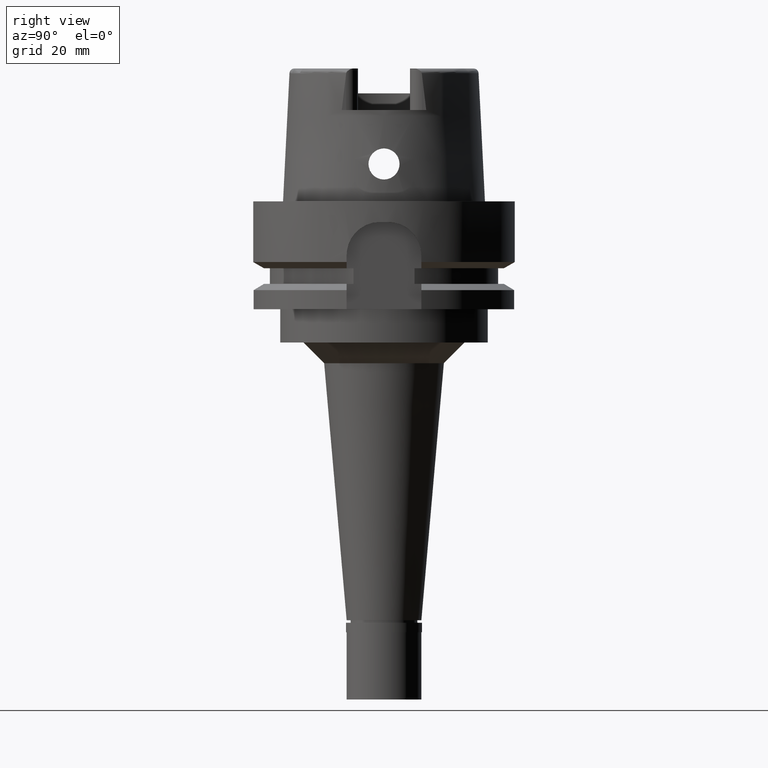
[diagram: clean part render]
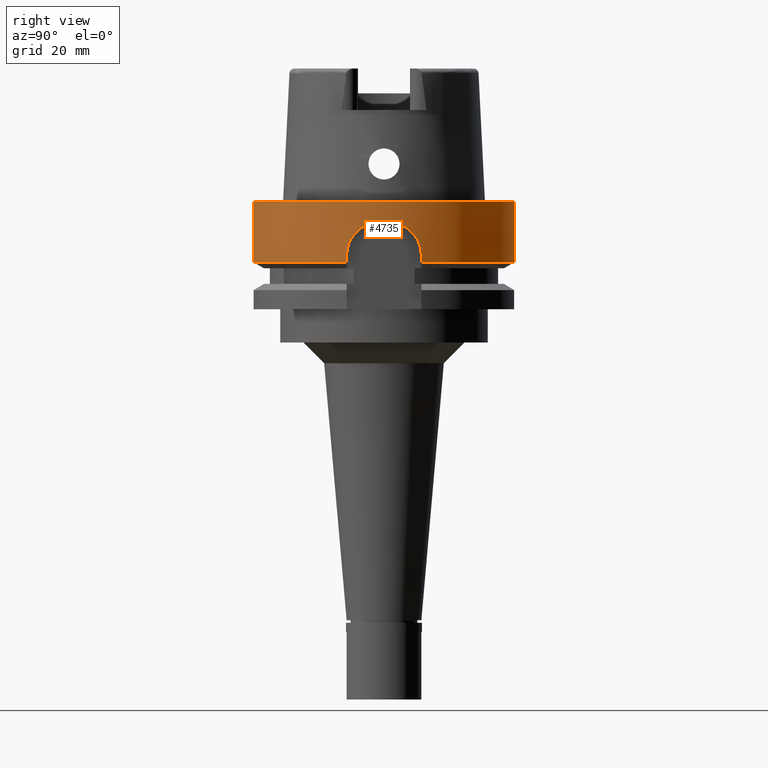
[diagram: same view with one face highlighted and labeled with its STEP entity id]
A machine part, right view. The second image highlights one B-rep face of the part: STEP entity #4735.
In plain terms, the highlighted cylindrical surface (partial cylindrical patch) has radius 31.5 mm, axis along (0, 0, -1).
Its self-contained STEP definition (entity closure, byte-faithful):
#12 = CARTESIAN_POINT ( 'NONE',  ( 31.06537420960910723, -5.215262925828230145, -6.199965675307625546 ) ) ;
#98 = CARTESIAN_POINT ( 'NONE',  ( 31.35652304813349289, 3.038208806441651699, -5.246042219105312654 ) ) ;
#121 = CARTESIAN_POINT ( 'NONE',  ( 0.0000000000000000000, -31.50000000000000000, -14.62250092523999889 ) ) ;
#133 = EDGE_CURVE ( 'NONE', #227, #1903, #3087, .T. ) ;
#161 = CARTESIAN_POINT ( 'NONE',  ( 31.17301478903089418, 4.527664390614794421, -5.818691817269986188 ) ) ;
#195 = DIRECTION ( 'NONE',  ( -1.272461628674999685E-07, -4.267954488705003541E-07, -0.9999999999999007461 ) ) ;
#227 = VERTEX_POINT ( 'NONE', #1460 ) ;
#233 = B_SPLINE_CURVE_WITH_KNOTS ( 'NONE', 3,
 ( #3119, #4789, #3967, #1078, #675, #2327, #262, #1917, #3585, #5264, #5327, #4567, #3647, #374, #351, #1243, #2896, #1567, #836, #12, #4924, #3757, #2003, #3674, #5008, #2055, #4956, #458, #757, #2084, #2409, #1663, #3698, #434, #1272, #3225, #4546, #2927, #1642, #5351, #4157, #3732, #3332, #4599, #4897, #2489, #1615, #4179, #1162, #2822, #5375, #2515, #2438, #868, #3308, #4485 ),
 .UNSPECIFIED., .F., .F.,
 ( 4, 2, 2, 2, 1, 1, 1, 2, 2, 2, 2, 1, 1, 1, 1, 1, 2, 2, 2, 2, 2, 1, 1, 2, 2, 2, 2, 2, 1, 1, 1, 1, 2, 2, 4 ),
 ( 0.0000000000000000000, 0.1250000000000068001, 0.1875000000000101585, 0.2187500000000119071, 0.2343750000000127121, 0.2421875000000132394, 0.2460937500000134337, 0.2480468750000134059, 0.2500000000000133782, 0.3125000000000138223, 0.3437500000000140998, 0.3593750000000142664, 0.3671875000000143219, 0.3710937500000142664, 0.3730468750000142664, 0.3740234375000144329, 0.3745117187500144884, 0.3750000000000145439, 0.4375000000000074940, 0.4687500000000040523, 0.4843750000000024980, 0.4921875000000017764, 0.4960937500000014433, 0.4980468750000011657, 0.5000000000000008882, 0.6249999999999849010, 0.6874999999999771294, 0.7187499999999731326, 0.7343749999999711342, 0.7421874999999701350, 0.7460937499999696909, 0.7480468749999696909, 0.7490234374999696909, 0.7499999999999696909, 1.000000000000000000 ),
 .UNSPECIFIED. ) ;
#239 = EDGE_CURVE ( 'NONE', #4286, #2736, #233, .T. ) ;
#248 = LINE ( 'NONE', #2239, #2398 ) ;
#262 = CARTESIAN_POINT ( 'NONE',  ( 31.30229305135868856, -3.522325760080141421, -5.406821798531455947 ) ) ;
#263 = VERTEX_POINT ( 'NONE', #2461 ) ;
#338 = CARTESIAN_POINT ( 'NONE',  ( 30.18691769625000276, 9.000000000000005329, -12.51290277298119946 ) ) ;
#351 = CARTESIAN_POINT ( 'NONE',  ( 31.21248490516407870, -4.251446583906544952, -5.686794611153922041 ) ) ;
#374 = CARTESIAN_POINT ( 'NONE',  ( 31.24128338012720008, -4.027921619692534705, -5.595154001821233791 ) ) ;
#384 = CARTESIAN_POINT ( 'NONE',  ( 30.29333038228165265, 8.637223286389021482, -10.61454338906911055 ) ) ;
#428 = VERTEX_POINT ( 'NONE', #121 ) ;
#434 = CARTESIAN_POINT ( 'NONE',  ( 30.82666952442392017, -6.477928986639647668, -7.169539234038126096 ) ) ;
#458 = CARTESIAN_POINT ( 'NONE',  ( 31.00874798480413119, -5.542724431908736094, -6.413435654821948440 ) ) ;
#543 = CARTESIAN_POINT ( 'NONE',  ( 0.0000000000000000000, 31.50000000000000000, -14.62250092523999889 ) ) ;
#548 = DIRECTION ( 'NONE',  ( 0.0000000000000000000, 2.672583210395999918E-14, -1.000000000000000000 ) ) ;
#600 = CARTESIAN_POINT ( 'NONE',  ( 31.06311153668320912, 5.234215507063866291, -6.206011024516627117 ) ) ;
#627 = CARTESIAN_POINT ( 'NONE',  ( 0.0000000000000000000, 31.50000000000000000, 6.158037043253999242E-14 ) ) ;
#675 = CARTESIAN_POINT ( 'NONE',  ( 31.35629998204759161, -3.008737421609345208, -5.251667742829386754 ) ) ;
#713 = CARTESIAN_POINT ( 'NONE',  ( 30.71979146057582000, 6.968947557259334680, -7.672911036218124536 ) ) ;
#757 = CARTESIAN_POINT ( 'NONE',  ( 30.97882376516799496, -5.708344321036689095, -6.526940200873093012 ) ) ;
#770 = DIRECTION ( 'NONE',  ( 0.0000000000000000000, 0.0000000000000000000, -1.000000000000000000 ) ) ;
#772 = CARTESIAN_POINT ( 'NONE',  ( 30.77037764607009507, 6.740577194323180699, -7.428059353613956084 ) ) ;
#795 = CARTESIAN_POINT ( 'NONE',  ( 30.26140657647215093, 8.749514755589137494, -10.99616564354917259 ) ) ;
#836 = CARTESIAN_POINT ( 'NONE',  ( 31.08030786989428762, -5.125110345486934449, -6.145200024711205522 ) ) ;
#850 = CARTESIAN_POINT ( 'NONE',  ( 31.19700112750572529, 4.358220806130422176, -5.738715414314634167 ) ) ;
#868 = CARTESIAN_POINT ( 'NONE',  ( 30.24517205177147261, -8.815232857481127837, -10.96374874845080072 ) ) ;
#925 = LINE ( 'NONE', #627, #1796 ) ;
#937 = VERTEX_POINT ( 'NONE', #4884 ) ;
#956 = CARTESIAN_POINT ( 'NONE',  ( 31.22795408579032639, 4.130097680596525933, -5.637740077755972301 ) ) ;
#980 = CARTESIAN_POINT ( 'NONE',  ( 30.99865930902020850, 5.597208795502736756, -6.452693806514301578 ) ) ;
#1000 = CARTESIAN_POINT ( 'NONE',  ( 31.01897584365614691, 5.484023361094106264, -6.374779921374130076 ) ) ;
#1039 = ORIENTED_EDGE ( 'NONE', *, *, #5389, .F. ) ;
#1057 = CARTESIAN_POINT ( 'NONE',  ( 0.0000000000000000000, 0.0000000000000000000, -14.62250092523999889 ) ) ;
#1078 = CARTESIAN_POINT ( 'NONE',  ( 31.37975950767111399, -2.752180734467637002, -5.189933166203299919 ) ) ;
#1124 = CARTESIAN_POINT ( 'NONE',  ( 30.59732907368781341, 7.495988719338453343, -8.321262247425165626 ) ) ;
#1162 = CARTESIAN_POINT ( 'NONE',  ( 30.36608352011159440, -8.376243802762976642, -9.903021378248771711 ) ) ;
#1243 = CARTESIAN_POINT ( 'NONE',  ( 31.18089840350962660, -4.477745571065047336, -5.790662116334392095 ) ) ;
#1253 = CARTESIAN_POINT ( 'NONE',  ( 31.20864534928192668, 4.274300215045112594, -5.700318323044802682 ) ) ;
#1258 = EDGE_CURVE ( 'NONE', #937, #2203, #5299, .T. ) ;
#1272 = CARTESIAN_POINT ( 'NONE',  ( 30.81626248329163431, -6.527498683527570122, -7.216354841520868924 ) ) ;
#1348 = CARTESIAN_POINT ( 'NONE',  ( 31.10253753382211173, 4.993364918853616885, -6.062914665912725098 ) ) ;
#1383 = CARTESIAN_POINT ( 'NONE',  ( 31.23063614446296654, 4.109694012148594311, -5.629120985526690824 ) ) ;
#1440 = DIRECTION ( 'NONE',  ( 0.0000000000000000000, 0.0000000000000000000, 1.000000000000000000 ) ) ;
#1443 = AXIS2_PLACEMENT_3D ( 'NONE', #3656, #770, #3292 ) ;
#1460 = CARTESIAN_POINT ( 'NONE',  ( 30.18691769625000276, 9.000000000000000000, -13.00000000000000000 ) ) ;
#1525 = CARTESIAN_POINT ( 'NONE',  ( 30.55809075271425357, 7.654587289715775178, -8.551970009305495779 ) ) ;
#1553 = CARTESIAN_POINT ( 'NONE',  ( 30.39683595795235860, 8.264762755918525272, -9.628328618055491006 ) ) ;
#1567 = CARTESIAN_POINT ( 'NONE',  ( 31.10948880776135539, -4.945764486266455151, -6.039381142917757295 ) ) ;
#1615 = CARTESIAN_POINT ( 'NONE',  ( 30.37994356320156442, -8.326097652125650228, -9.785570822238394584 ) ) ;
#1642 = CARTESIAN_POINT ( 'NONE',  ( 30.79252793530079302, -6.638577831383798866, -7.324918368468799734 ) ) ;
#1652 = CARTESIAN_POINT ( 'NONE',  ( 30.77511389599855463, 6.718864262899675310, -7.405833469173187744 ) ) ;
#1663 = CARTESIAN_POINT ( 'NONE',  ( 30.85998930440283061, -6.316826966320896908, -7.021877823813506225 ) ) ;
#1745 = CARTESIAN_POINT ( 'NONE',  ( 31.23241691383926621, 4.096110616411776206, -5.623405030358647139 ) ) ;
#1767 = LINE ( 'NONE', #2219, #5287 ) ;
#1796 = VECTOR ( 'NONE', #548, 1000.000000000000000 ) ;
#1824 = EDGE_CURVE ( 'NONE', #3445, #2203, #925, .T. ) ;
#1854 = CIRCLE ( 'NONE', #1443, 31.50000000000000000 ) ;
#1903 = VERTEX_POINT ( 'NONE', #4741 ) ;
#1917 = CARTESIAN_POINT ( 'NONE',  ( 31.27997315417979607, -3.714732619091694499, -5.474387239789384907 ) ) ;
#1932 = CARTESIAN_POINT ( 'NONE',  ( 30.35408641439923016, 8.419636902419723512, -10.00849287697191059 ) ) ;
#2003 = CARTESIAN_POINT ( 'NONE',  ( 31.03357087380053159, -5.400789274022889330, -6.319191758824826088 ) ) ;
#2033 = LINE ( 'NONE', #3208, #2254 ) ;
#2055 = CARTESIAN_POINT ( 'NONE',  ( 31.02959235396835069, -5.423587813973389515, -6.334276029409488196 ) ) ;
#2084 = CARTESIAN_POINT ( 'NONE',  ( 30.91932029300748397, -6.019228095310904081, -6.769060931178228380 ) ) ;
#2099 = CARTESIAN_POINT ( 'NONE',  ( 0.0000000000000000000, 0.0000000000000000000, 39.37000000000000455 ) ) ;
#2171 = CARTESIAN_POINT ( 'NONE',  ( 30.95338013814841105, 5.841557089470855502, -6.630024588332767976 ) ) ;
#2203 = VERTEX_POINT ( 'NONE', #543 ) ;
#2218 = AXIS2_PLACEMENT_3D ( 'NONE', #2099, #4227, #3772 ) ;
#2219 = CARTESIAN_POINT ( 'NONE',  ( 30.18691773962000013, 8.999999854531999688, -14.62250209852999916 ) ) ;
#2227 = AXIS2_PLACEMENT_3D ( 'NONE', #4226, #2968, #4998 ) ;
#2239 = CARTESIAN_POINT ( 'NONE',  ( 30.18691769625000276, -9.000000000000000000, -13.00000000000000000 ) ) ;
#2252 = CARTESIAN_POINT ( 'NONE',  ( 30.77952997296336335, 6.698588075593392865, -7.385175619661193736 ) ) ;
#2254 = VECTOR ( 'NONE', #4084, 1000.000000000000000 ) ;
#2304 = DIRECTION ( 'NONE',  ( 0.0000000000000000000, -1.000000000000000000, 0.0000000000000000000 ) ) ;
#2327 = CARTESIAN_POINT ( 'NONE',  ( 31.31638544065106800, -3.393891361163090981, -5.365394322555368412 ) ) ;
#2341 = CARTESIAN_POINT ( 'NONE',  ( 30.35540877907671842, 8.414849116005239438, -9.996663407169675608 ) ) ;
#2394 = CARTESIAN_POINT ( 'NONE',  ( 30.34495716198917847, 8.452640952074144565, -10.09136464639980346 ) ) ;
#2398 = VECTOR ( 'NONE', #195, 1000.000000000000114 ) ;
#2409 = CARTESIAN_POINT ( 'NONE',  ( 30.89704961183625898, -6.133164548792232829, -6.861840936578633254 ) ) ;
#2438 = CARTESIAN_POINT ( 'NONE',  ( 30.36213587496694188, -8.390562335615561196, -9.937385586962886208 ) ) ;
#2448 = CARTESIAN_POINT ( 'NONE',  ( 30.33312429299555646, 8.495288369672877593, -10.20202393759604220 ) ) ;
#2461 = CARTESIAN_POINT ( 'NONE',  ( 0.0000000000000000000, -31.50000000000000000, 9.947598300640998705E-14 ) ) ;
#2489 = CARTESIAN_POINT ( 'NONE',  ( 30.38851535902288248, -8.295126439216266689, -9.716127431052328234 ) ) ;
#2515 = CARTESIAN_POINT ( 'NONE',  ( 30.36230293885927622, -8.389956036953341467, -9.935924523431708622 ) ) ;
#2529 = FACE_OUTER_BOUND ( 'NONE', #4425, .T. ) ;
#2573 = VERTEX_POINT ( 'NONE', #3778 ) ;
#2587 = CARTESIAN_POINT ( 'NONE',  ( 0.0000000000000000000, 31.50000000000000000, 9.947598300640998705E-14 ) ) ;
#2602 = ORIENTED_EDGE ( 'NONE', *, *, #4156, .T. ) ;
#2659 = CARTESIAN_POINT ( 'NONE',  ( 30.77827897772388255, 6.704335757480357927, -7.391019593720717928 ) ) ;
#2665 = DIRECTION ( 'NONE',  ( 0.0000000000000000000, 0.0000000000000000000, 1.000000000000000000 ) ) ;
#2680 = ORIENTED_EDGE ( 'NONE', *, *, #1258, .T. ) ;
#2722 = EDGE_CURVE ( 'NONE', #263, #428, #2033, .T. ) ;
#2736 = VERTEX_POINT ( 'NONE', #3596 ) ;
#2754 = CARTESIAN_POINT ( 'NONE',  ( 30.31062244376178327, 8.575950237284626354, -10.42382863510308688 ) ) ;
#2785 = CARTESIAN_POINT ( 'NONE',  ( 30.18691769625000276, 9.000000000000000000, -13.00000000000000000 ) ) ;
#2822 = CARTESIAN_POINT ( 'NONE',  ( 30.36386856289637493, -8.384275053958047508, -9.922250248947438678 ) ) ;
#2896 = CARTESIAN_POINT ( 'NONE',  ( 31.12802758940170378, -4.827483298847329962, -5.973785632253708400 ) ) ;
#2906 = CARTESIAN_POINT ( 'NONE',  ( 31.48412298285999711, 1.000000000000000000, -5.000000000000000000 ) ) ;
#2927 = CARTESIAN_POINT ( 'NONE',  ( 30.79460144419056533, -6.628949656819956182, -7.315365531599634430 ) ) ;
#2968 = DIRECTION ( 'NONE',  ( 0.0000000000000000000, 0.0000000000000000000, 1.000000000000000000 ) ) ;
#3046 = CARTESIAN_POINT ( 'NONE',  ( 31.01940109800728251, 5.481619250831508694, -6.373153855847008664 ) ) ;
#3072 = CARTESIAN_POINT ( 'NONE',  ( 31.01590098233308268, 5.501359413758254213, -6.386538011366657663 ) ) ;
#3087 = B_SPLINE_CURVE_WITH_KNOTS ( 'NONE', 3,
 ( #2785, #338, #4530, #4503, #795, #384, #2754, #2448, #2394, #4420, #1932, #2341, #3658, #3600, #1553, #5278, #1525, #1124, #5337, #4447, #713, #5309, #4908, #772, #1652, #2659, #2252, #5131, #4738, #2171, #3839, #4992, #980, #4687, #5093, #3072, #3427, #1000, #3046, #4582, #4325, #600, #1348, #5155, #161, #850, #1253, #3744, #956, #1383, #1745, #3319, #4716, #98, #4296, #3919, #2906 ),
 .UNSPECIFIED., .F., .F.,
 ( 4, 2, 2, 1, 1, 1, 1, 1, 2, 2, 2, 2, 2, 1, 1, 1, 2, 2, 2, 2, 2, 1, 1, 1, 1, 2, 2, 2, 2, 1, 1, 1, 2, 2, 2, 4 ),
 ( 0.0000000000000000000, 0.1249999999999475975, 0.1874999999999214517, 0.2187499999999082678, 0.2343749999999016620, 0.2421874999998984701, 0.2460937499998969435, 0.2480468749998963607, 0.2490234374998961386, 0.2499999999998958611, 0.3749999999999122924, 0.4374999999999203970, 0.4687499999999244493, 0.4843749999999265032, 0.4921874999999274469, 0.4960937499999278910, 0.4980468749999281131, 0.4999999999999282796, 0.5624999999999317213, 0.5937499999999336087, 0.6093749999999347189, 0.6171874999999350520, 0.6210937499999356071, 0.6230468749999359401, 0.6240234374999362732, 0.6245117187499363842, 0.6249999999999364952, 0.6874999999999474865, 0.7187499999999529265, 0.7343749999999557021, 0.7421874999999570344, 0.7460937499999578115, 0.7480468749999581446, 0.7499999999999585887, 0.8749999999999793499, 1.000000000000000000 ),
 .UNSPECIFIED. ) ;
#3119 = CARTESIAN_POINT ( 'NONE',  ( 31.48412298285999711, -1.000000000000000000, -5.000000000000000000 ) ) ;
#3208 = CARTESIAN_POINT ( 'NONE',  ( 0.0000000000000000000, -31.50000000000000000, 6.158037043253999242E-14 ) ) ;
#3209 = ORIENTED_EDGE ( 'NONE', *, *, #239, .F. ) ;
#3225 = CARTESIAN_POINT ( 'NONE',  ( 30.80372124780809173, -6.586431820580994412, -7.273503248455378767 ) ) ;
#3292 = DIRECTION ( 'NONE',  ( 0.0000000000000000000, 1.000000000000000000, 0.0000000000000000000 ) ) ;
#3308 = CARTESIAN_POINT ( 'NONE',  ( 30.18691769625000276, -9.000000000000000000, -12.01408726828963935 ) ) ;
#3319 = CARTESIAN_POINT ( 'NONE',  ( 31.23312940097716250, 4.090664857534896726, -5.621120141975917583 ) ) ;
#3332 = CARTESIAN_POINT ( 'NONE',  ( 30.46105865285199954, -8.029808357767297622, -9.174703387867642945 ) ) ;
#3363 = AXIS2_PLACEMENT_3D ( 'NONE', #5216, #1440, #3497 ) ;
#3386 = EDGE_CURVE ( 'NONE', #4286, #1903, #5021, .T. ) ;
#3403 = ORIENTED_EDGE ( 'NONE', *, *, #3735, .T. ) ;
#3427 = CARTESIAN_POINT ( 'NONE',  ( 31.01796957195135107, 5.489705485473880486, -6.378627642656417684 ) ) ;
#3442 = CYLINDRICAL_SURFACE ( 'NONE', #2218, 31.50000000000000000 ) ;
#3445 = VERTEX_POINT ( 'NONE', #2587 ) ;
#3455 = DIRECTION ( 'NONE',  ( -2.673007076783973183E-08, 8.965648065275920399E-08, 0.9999999999999955591 ) ) ;
#3497 = DIRECTION ( 'NONE',  ( 0.9583148474999051425, 0.2857142857143015191, 0.0000000000000000000 ) ) ;
#3561 = EDGE_CURVE ( 'NONE', #2736, #2573, #248, .T. ) ;
#3585 = CARTESIAN_POINT ( 'NONE',  ( 31.26851787728028498, -3.810874551152308776, -5.509525764877651888 ) ) ;
#3596 = CARTESIAN_POINT ( 'NONE',  ( 30.18691769625000276, -9.000000000000000000, -13.00000000000000000 ) ) ;
#3600 = CARTESIAN_POINT ( 'NONE',  ( 30.35686816605646854, 8.409563549986868836, -9.983648421437578691 ) ) ;
#3647 = CARTESIAN_POINT ( 'NONE',  ( 31.24246449970277695, -4.018728728086201407, -5.591400189311379165 ) ) ;
#3656 = CARTESIAN_POINT ( 'NONE',  ( 0.0000000000000000000, 0.0000000000000000000, 9.947598300640998705E-14 ) ) ;
#3658 = CARTESIAN_POINT ( 'NONE',  ( 30.35629208750567543, 8.411650305337602163, -9.988778013107243225 ) ) ;
#3674 = CARTESIAN_POINT ( 'NONE',  ( 31.03125228626445065, -5.414086454127116532, -6.327978033050007944 ) ) ;
#3698 = CARTESIAN_POINT ( 'NONE',  ( 30.84702682097891824, -6.380165546519363851, -7.078705074361152150 ) ) ;
#3732 = CARTESIAN_POINT ( 'NONE',  ( 30.49285535147856763, -7.910442678835009289, -8.960801660340997898 ) ) ;
#3735 = EDGE_CURVE ( 'NONE', #3445, #263, #1854, .T. ) ;
#3744 = CARTESIAN_POINT ( 'NONE',  ( 31.22161961663037033, 4.177904724589990515, -5.658169526674242000 ) ) ;
#3757 = CARTESIAN_POINT ( 'NONE',  ( 31.03818928059564541, -5.374211930501611612, -6.301728087992869654 ) ) ;
#3772 = DIRECTION ( 'NONE',  ( 0.0000000000000000000, -1.000000000000000000, 0.0000000000000000000 ) ) ;
#3778 = CARTESIAN_POINT ( 'NONE',  ( 30.18691748978999811, -9.000000692472998054, -14.62249533990000039 ) ) ;
#3839 = CARTESIAN_POINT ( 'NONE',  ( 30.97052288502338158, 5.750138029839966691, -6.562185880293945672 ) ) ;
#3919 = CARTESIAN_POINT ( 'NONE',  ( 31.46848308311250975, 1.492408527066131807, -4.999999999999998224 ) ) ;
#3967 = CARTESIAN_POINT ( 'NONE',  ( 31.44068757861919750, -1.987774036406896538, -5.044283341430306322 ) ) ;
#4084 = DIRECTION ( 'NONE',  ( 0.0000000000000000000, -2.672583210395999918E-14, -1.000000000000000000 ) ) ;
#4156 = EDGE_CURVE ( 'NONE', #428, #2573, #4476, .T. ) ;
#4157 = CARTESIAN_POINT ( 'NONE',  ( 30.60016354927345006, -7.489575535840814702, -8.292264414509885384 ) ) ;
#4179 = CARTESIAN_POINT ( 'NONE',  ( 30.37059490594182520, -8.359904073268200619, -9.864265387455898093 ) ) ;
#4226 = CARTESIAN_POINT ( 'NONE',  ( 0.0000000000000000000, 0.0000000000000000000, -5.000000000000000000 ) ) ;
#4227 = DIRECTION ( 'NONE',  ( 0.0000000000000000000, 0.0000000000000000000, -1.000000000000000000 ) ) ;
#4263 = ORIENTED_EDGE ( 'NONE', *, *, #3561, .F. ) ;
#4286 = VERTEX_POINT ( 'NONE', #4464 ) ;
#4296 = CARTESIAN_POINT ( 'NONE',  ( 31.43983511621768656, 2.002623051238899166, -5.045573344126053961 ) ) ;
#4325 = CARTESIAN_POINT ( 'NONE',  ( 31.01962633873365505, 5.480345957729820583, -6.372292598416500198 ) ) ;
#4420 = CARTESIAN_POINT ( 'NONE',  ( 30.35101908258018355, 8.430735436371504576, -10.03610448556123735 ) ) ;
#4425 = EDGE_LOOP ( 'NONE', ( #2680, #5036, #3403, #4807, #2602, #4263, #3209, #5052, #5168, #1039 ) ) ;
#4447 = CARTESIAN_POINT ( 'NONE',  ( 30.68453991816136295, 7.124639429485974951, -7.850860369321782883 ) ) ;
#4464 = CARTESIAN_POINT ( 'NONE',  ( 31.48412298285999711, -1.000000000000000000, -5.000000000000000000 ) ) ;
#4476 = CIRCLE ( 'NONE', #4654, 31.50000000000000000 ) ;
#4485 = CARTESIAN_POINT ( 'NONE',  ( 30.18691769625000276, -9.000000000000000000, -13.00000000000000000 ) ) ;
#4503 = CARTESIAN_POINT ( 'NONE',  ( 30.24367112880021580, 8.810694335724789994, -11.25082614400026415 ) ) ;
#4530 = CARTESIAN_POINT ( 'NONE',  ( 30.20110605438755158, 8.955397615994181493, -12.01112715176355117 ) ) ;
#4546 = CARTESIAN_POINT ( 'NONE',  ( 30.79826078528030919, -6.611913375012225202, -7.298546540600552746 ) ) ;
#4567 = CARTESIAN_POINT ( 'NONE',  ( 31.24450907132816013, -4.002757891876214558, -5.584912722598369683 ) ) ;
#4582 = CARTESIAN_POINT ( 'NONE',  ( 31.01968326647449459, 5.480023423971561947, -6.372074906249690862 ) ) ;
#4599 = CARTESIAN_POINT ( 'NONE',  ( 30.41932265586971695, -8.183401052227710082, -9.477000673817068233 ) ) ;
#4654 = AXIS2_PLACEMENT_3D ( 'NONE', #1057, #2665, #2304 ) ;
#4687 = CARTESIAN_POINT ( 'NONE',  ( 31.00741698934104207, 5.548757050394957702, -6.419027725961904629 ) ) ;
#4716 = CARTESIAN_POINT ( 'NONE',  ( 31.30185894694410820, 3.563580567063989513, -5.401029616623945984 ) ) ;
#4735 = ADVANCED_FACE ( 'NONE', ( #2529 ), #3442, .T. ) ;
#4738 = CARTESIAN_POINT ( 'NONE',  ( 30.89375313785275168, 6.151398676298306611, -6.873652078012988831 ) ) ;
#4741 = CARTESIAN_POINT ( 'NONE',  ( 31.48412298285999711, 1.000000000000000000, -5.000000000000000000 ) ) ;
#4789 = CARTESIAN_POINT ( 'NONE',  ( 31.46870561802125010, -1.485402210801236356, -4.999999999999999112 ) ) ;
#4807 = ORIENTED_EDGE ( 'NONE', *, *, #2722, .T. ) ;
#4884 = CARTESIAN_POINT ( 'NONE',  ( 30.18691773962000013, 8.999999854531999688, -14.62250209852999916 ) ) ;
#4897 = CARTESIAN_POINT ( 'NONE',  ( 30.40640383203523101, -8.230354259268104045, -9.574692343972541764 ) ) ;
#4908 = CARTESIAN_POINT ( 'NONE',  ( 30.75940600485379406, 6.790683816920193294, -7.479951096286077572 ) ) ;
#4924 = CARTESIAN_POINT ( 'NONE',  ( 31.04735102107768796, -5.321127899609864542, -6.267234331095306032 ) ) ;
#4956 = CARTESIAN_POINT ( 'NONE',  ( 31.02908509465035181, -5.426488125712303656, -6.336201980605543405 ) ) ;
#4992 = CARTESIAN_POINT ( 'NONE',  ( 30.99213762550043327, 5.632954711959473393, -6.477880243161954432 ) ) ;
#4998 = DIRECTION ( 'NONE',  ( 0.9994959677099152229, -0.03174603174603050915, 0.0000000000000000000 ) ) ;
#5008 = CARTESIAN_POINT ( 'NONE',  ( 31.03025659500504219, -5.419787033925141273, -6.331755270328924823 ) ) ;
#5021 = CIRCLE ( 'NONE', #2227, 31.49999999999999289 ) ;
#5036 = ORIENTED_EDGE ( 'NONE', *, *, #1824, .F. ) ;
#5052 = ORIENTED_EDGE ( 'NONE', *, *, #3386, .T. ) ;
#5093 = CARTESIAN_POINT ( 'NONE',  ( 31.01153961826173244, 5.525822232665939637, -6.403223808298151631 ) ) ;
#5131 = CARTESIAN_POINT ( 'NONE',  ( 30.84307012476128307, 6.406183640970825266, -7.089342774396693692 ) ) ;
#5155 = CARTESIAN_POINT ( 'NONE',  ( 31.15609337015112601, 4.642766946645807025, -5.876252527685329241 ) ) ;
#5168 = ORIENTED_EDGE ( 'NONE', *, *, #133, .F. ) ;
#5216 = CARTESIAN_POINT ( 'NONE',  ( 0.0000000000000000000, 0.0000000000000000000, -14.62250092523999889 ) ) ;
#5264 = CARTESIAN_POINT ( 'NONE',  ( 31.25463656302153481, -3.922859386172782070, -5.552922555541202954 ) ) ;
#5278 = CARTESIAN_POINT ( 'NONE',  ( 30.45202139316223366, 8.069344242614583607, -9.218679707077150454 ) ) ;
#5287 = VECTOR ( 'NONE', #3455, 1000.000000000000227 ) ;
#5299 = CIRCLE ( 'NONE', #3363, 31.49999999999999645 ) ;
#5309 = CARTESIAN_POINT ( 'NONE',  ( 30.73778115688833168, 6.888684963221034963, -7.583827119819013696 ) ) ;
#5327 = CARTESIAN_POINT ( 'NONE',  ( 31.24756669975651491, -3.978797233297640901, -5.575224836837012532 ) ) ;
#5337 = CARTESIAN_POINT ( 'NONE',  ( 30.66200935683243856, 7.221987631225064597, -7.969196483993068902 ) ) ;
#5351 = CARTESIAN_POINT ( 'NONE',  ( 30.68759315035693902, -7.124798356586896197, -7.809288283399788533 ) ) ;
#5375 = CARTESIAN_POINT ( 'NONE',  ( 30.36292802459696816, -8.387687556139256984, -9.930459101579600656 ) ) ;
#5389 = EDGE_CURVE ( 'NONE', #937, #227, #1767, .T. ) ;